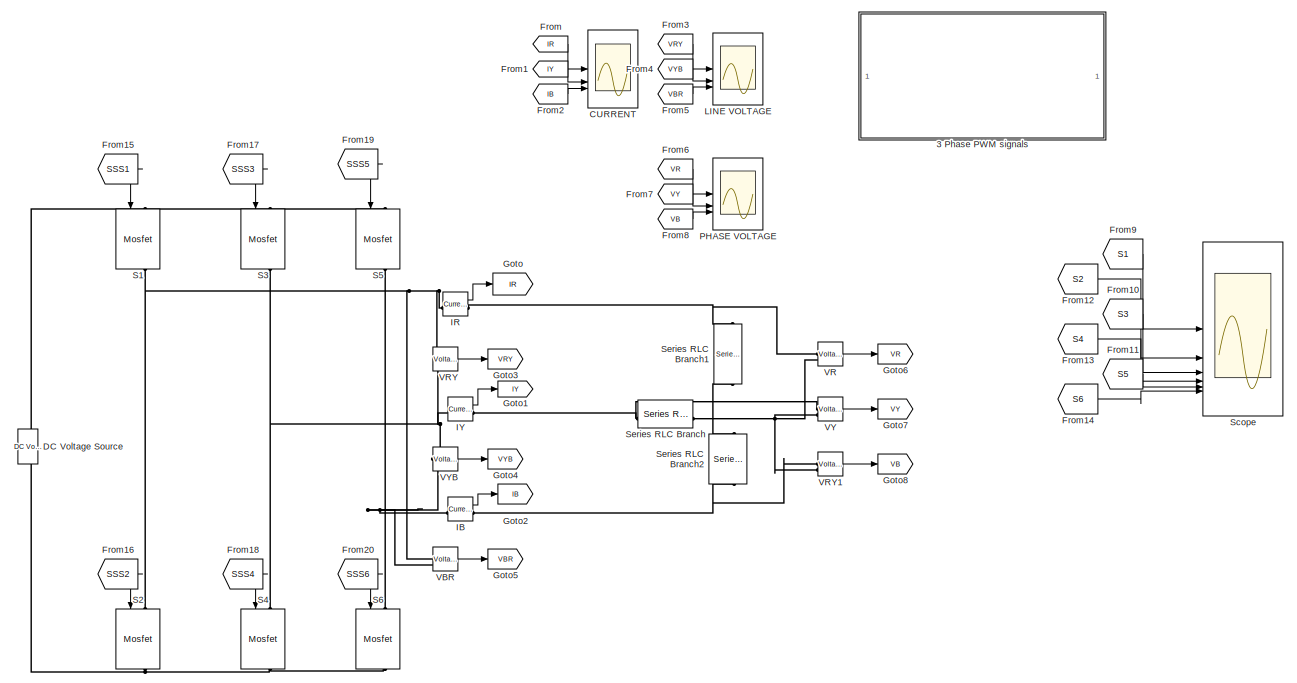
[diagram: root canvas - part 1/2, left side, full height]
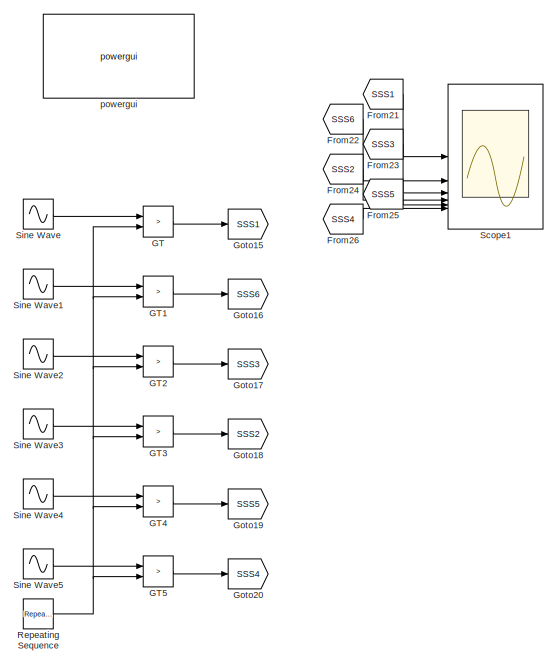
[diagram: root canvas - part 2/2, right side, full height]
MODEL slx_63629c87b95e
KIND model
CONFIG AbsTol = auto
CONFIG EnableMultiTasking = off
CONFIG FixedStep = auto
CONFIG MaxStep = auto
CONFIG MinStep = auto
CONFIG RelTol = 1e-3
CONFIG SampleTimeConstraint = Unconstrained
CONFIG SolverName = VariableStepAuto
CONFIG StartTime = 0.0
CONFIG StopTime = 1
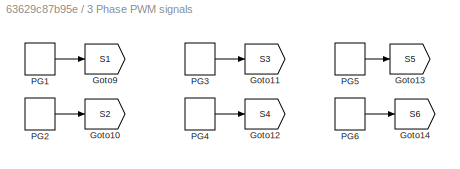
BLOCK [SubSystem] 3 Phase PWM signals
BLOCK [Goto] 3 Phase PWM signals/Goto10
  GotoTag = S2
BLOCK [Goto] 3 Phase PWM signals/Goto11
  GotoTag = S3
BLOCK [Goto] 3 Phase PWM signals/Goto12
  GotoTag = S4
BLOCK [Goto] 3 Phase PWM signals/Goto13
  GotoTag = S5
BLOCK [Goto] 3 Phase PWM signals/Goto14
  GotoTag = S6
BLOCK [Goto] 3 Phase PWM signals/Goto9
  GotoTag = S1
BLOCK [DiscretePulseGenerator] 3 Phase PWM signals/PG1
  Period = 0.02
  PulseType = Time based
  PulseWidth = 50
BLOCK [DiscretePulseGenerator] 3 Phase PWM signals/PG2
  Period = 0.02
  PhaseDelay = 180*0.02/360
  PulseType = Time based
  PulseWidth = 50
BLOCK [DiscretePulseGenerator] 3 Phase PWM signals/PG3
  Period = 0.02
  PhaseDelay = 120*0.02/360
  PulseType = Time based
  PulseWidth = 50
BLOCK [DiscretePulseGenerator] 3 Phase PWM signals/PG4
  Period = 0.02
  PhaseDelay = 300*0.02/360
  PulseType = Time based
  PulseWidth = 50
BLOCK [DiscretePulseGenerator] 3 Phase PWM signals/PG5
  Period = 0.02
  PhaseDelay = 240*0.02/360
  PulseType = Time based
  PulseWidth = 50
BLOCK [DiscretePulseGenerator] 3 Phase PWM signals/PG6
  Period = 0.02
  PhaseDelay = 60*0.02/360
  PulseType = Time based
  PulseWidth = 50
BLOCK [Scope] CURRENT
  Floating = off
  NumInputPorts = 3
  ScopeSpecificationString = Simulink.scopes.TimeScopeBlockCfg('CurrentConfiguration', extmgr.ConfigurationSet(extmgr.Configuration('Core','General UI',true),extmgr.Configuration('Core','Source UI',true),extmgr.Configuration('Sources','WiredSimulink',true),extmgr.Configuration('Visuals','Time Domain',true,'SerializedDisplays',{struct('MinYLimReal','-54.92414','MaxYLimReal','39.77265','YLabelReal','','MinYLimMag','0.00000','Ma...<+2967ch>
BLOCK [Reference] DC Voltage Source  REF=spsDCVoltageSourceLib/DC Voltage Source
  LibrarySourceBlock = sps_lib/Sources/DC Voltage Source
  SourceBlock = spsDCVoltageSourceLib/DC Voltage Source
  SourceType = DC Voltage Source
BLOCK [From] From
  GotoTag = IR
BLOCK [From] From1
  GotoTag = IY
BLOCK [From] From10
  GotoTag = S3
BLOCK [From] From11
  GotoTag = S5
BLOCK [From] From12
  GotoTag = S2
BLOCK [From] From13
  GotoTag = S4
BLOCK [From] From14
  GotoTag = S6
BLOCK [From] From15
  GotoTag = SSS1
BLOCK [From] From16
  GotoTag = SSS2
BLOCK [From] From17
  GotoTag = SSS3
BLOCK [From] From18
  GotoTag = SSS4
BLOCK [From] From19
  GotoTag = SSS5
BLOCK [From] From2
  GotoTag = IB
BLOCK [From] From20
  GotoTag = SSS6
BLOCK [From] From21
  GotoTag = SSS1
BLOCK [From] From22
  GotoTag = SSS6
BLOCK [From] From23
  GotoTag = SSS3
BLOCK [From] From24
  GotoTag = SSS2
BLOCK [From] From25
  GotoTag = SSS5
BLOCK [From] From26
  GotoTag = SSS4
BLOCK [From] From3
  GotoTag = VRY
BLOCK [From] From4
  GotoTag = VYB
BLOCK [From] From5
  GotoTag = VBR
BLOCK [From] From6
  GotoTag = VR
BLOCK [From] From7
  GotoTag = VY
BLOCK [From] From8
  GotoTag = VB
BLOCK [From] From9
  GotoTag = S1
BLOCK [RelationalOperator] GT
  InputSameDT = off
  Operator = >
  OutDataTypeStr = boolean
  RndMeth = Simplest
BLOCK [RelationalOperator] GT1
  InputSameDT = off
  Operator = >
  OutDataTypeStr = boolean
  RndMeth = Simplest
BLOCK [RelationalOperator] GT2
  InputSameDT = off
  Operator = >
  OutDataTypeStr = boolean
  RndMeth = Simplest
BLOCK [RelationalOperator] GT3
  InputSameDT = off
  Operator = >
  OutDataTypeStr = boolean
  RndMeth = Simplest
BLOCK [RelationalOperator] GT4
  InputSameDT = off
  Operator = >
  OutDataTypeStr = boolean
  RndMeth = Simplest
BLOCK [RelationalOperator] GT5
  InputSameDT = off
  Operator = >
  OutDataTypeStr = boolean
  RndMeth = Simplest
BLOCK [Goto] Goto
  GotoTag = IR
BLOCK [Goto] Goto1
  GotoTag = IY
BLOCK [Goto] Goto15
  GotoTag = SSS1
BLOCK [Goto] Goto16
  GotoTag = SSS6
BLOCK [Goto] Goto17
  GotoTag = SSS3
BLOCK [Goto] Goto18
  GotoTag = SSS2
BLOCK [Goto] Goto19
  GotoTag = SSS5
BLOCK [Goto] Goto2
  GotoTag = IB
BLOCK [Goto] Goto20
  GotoTag = SSS4
BLOCK [Goto] Goto3
  GotoTag = VRY
BLOCK [Goto] Goto4
  GotoTag = VYB
BLOCK [Goto] Goto5
  GotoTag = VBR
BLOCK [Goto] Goto6
  GotoTag = VR
BLOCK [Goto] Goto7
  GotoTag = VY
BLOCK [Goto] Goto8
  GotoTag = VB
BLOCK [Reference] IB  REF=spsCurrentMeasurementLib/Current Measurement
  LibrarySourceBlock = sps_lib/Sensors and Measurements/Current Measurement
  SourceBlock = spsCurrentMeasurementLib/Current Measurement
  SourceType = Current Measurement
  UserDataPersistent = on
BLOCK [Reference] IR  REF=spsCurrentMeasurementLib/Current Measurement
  LibrarySourceBlock = sps_lib/Sensors and Measurements/Current Measurement
  SourceBlock = spsCurrentMeasurementLib/Current Measurement
  SourceType = Current Measurement
  UserDataPersistent = on
BLOCK [Reference] IY  REF=spsCurrentMeasurementLib/Current Measurement
  LibrarySourceBlock = sps_lib/Sensors and Measurements/Current Measurement
  SourceBlock = spsCurrentMeasurementLib/Current Measurement
  SourceType = Current Measurement
  UserDataPersistent = on
BLOCK [Scope] LINE VOLTAGE
  Floating = off
  NumInputPorts = 3
  ScopeSpecificationString = Simulink.scopes.TimeScopeBlockCfg('CurrentConfiguration', extmgr.ConfigurationSet(extmgr.Configuration('Core','General UI',true),extmgr.Configuration('Core','Source UI',true),extmgr.Configuration('Sources','WiredSimulink',true,'DataLoggingVariableName','ScopeData1'),extmgr.Configuration('Visuals','Time Domain',true,'SerializedDisplays',{struct('MinYLimReal','-89.4541','MaxYLimReal','113.63616','YL...<+3038ch>
BLOCK [Scope] PHASE VOLTAGE
  Floating = off
  NumInputPorts = 3
  ScopeSpecificationString = Simulink.scopes.TimeScopeBlockCfg('CurrentConfiguration', extmgr.ConfigurationSet(extmgr.Configuration('Core','General UI',true),extmgr.Configuration('Core','Source UI',true),extmgr.Configuration('Sources','WiredSimulink',true,'DataLoggingVariableName','ScopeData2'),extmgr.Configuration('Visuals','Time Domain',true,'SerializedDisplays',{struct('MinYLimReal','-6.31792','MaxYLimReal','41.09954','YLa...<+3027ch>
BLOCK [Reference] Repeating Sequence  REF=simulink/Sources/Repeating
Sequence
  SourceBlock = simulink/Sources/Repeating\nSequence
  SourceType = Repeating table
BLOCK [Reference] S1  REF=spsMosfetLib/Mosfet
  LibrarySourceBlock = sps_lib/Power Electronics/Mosfet
  NameLocation = left
  SourceBlock = spsMosfetLib/Mosfet
  SourceType = Mosfet
BLOCK [Reference] S2  REF=spsMosfetLib/Mosfet
  LibrarySourceBlock = sps_lib/Power Electronics/Mosfet
  NameLocation = left
  SourceBlock = spsMosfetLib/Mosfet
  SourceType = Mosfet
BLOCK [Reference] S3  REF=spsMosfetLib/Mosfet
  LibrarySourceBlock = sps_lib/Power Electronics/Mosfet
  NameLocation = left
  SourceBlock = spsMosfetLib/Mosfet
  SourceType = Mosfet
BLOCK [Reference] S4  REF=spsMosfetLib/Mosfet
  LibrarySourceBlock = sps_lib/Power Electronics/Mosfet
  NameLocation = left
  SourceBlock = spsMosfetLib/Mosfet
  SourceType = Mosfet
BLOCK [Reference] S5  REF=spsMosfetLib/Mosfet
  LibrarySourceBlock = sps_lib/Power Electronics/Mosfet
  NameLocation = left
  SourceBlock = spsMosfetLib/Mosfet
  SourceType = Mosfet
BLOCK [Reference] S6  REF=spsMosfetLib/Mosfet
  LibrarySourceBlock = sps_lib/Power Electronics/Mosfet
  NameLocation = left
  SourceBlock = spsMosfetLib/Mosfet
  SourceType = Mosfet
BLOCK [Scope] Scope
  Floating = off
  NumInputPorts = 6
  ScopeSpecificationString = Simulink.scopes.TimeScopeBlockCfg('CurrentConfiguration', extmgr.ConfigurationSet(extmgr.Configuration('Core','General UI',true),extmgr.Configuration('Core','Source UI',true),extmgr.Configuration('Sources','WiredSimulink',true,'DataLoggingVariableName','ScopeData3'),extmgr.Configuration('Visuals','Time Domain',true,'SerializedDisplays',{struct('MinYLimReal','0.3981','MaxYLimReal','1.04402','YLabel...<+5609ch>
BLOCK [Scope] Scope1
  Floating = off
  NumInputPorts = 6
  ScopeSpecificationString = Simulink.scopes.TimeScopeBlockCfg('CurrentConfiguration', extmgr.ConfigurationSet(extmgr.Configuration('Core','General UI',true),extmgr.Configuration('Core','Source UI',true),extmgr.Configuration('Sources','WiredSimulink',true,'DataLoggingVariableName','ScopeData1'),extmgr.Configuration('Visuals','Time Domain',true,'SerializedDisplays',{struct('MinYLimReal','0.26635','MaxYLimReal','0.83212','YLabe...<+5364ch>
BLOCK [Reference] Series RLC Branch  REF=spsSeriesRLCBranchLib/Series RLC Branch
  LibrarySourceBlock = sps_lib/Passives/Series RLC Branch
  SourceBlock = spsSeriesRLCBranchLib/Series RLC Branch
  SourceType = Series RLC Branch
BLOCK [Reference] Series RLC Branch1  REF=spsSeriesRLCBranchLib/Series RLC Branch
  LibrarySourceBlock = sps_lib/Passives/Series RLC Branch
  NameLocation = left
  SourceBlock = spsSeriesRLCBranchLib/Series RLC Branch
  SourceType = Series RLC Branch
BLOCK [Reference] Series RLC Branch2  REF=spsSeriesRLCBranchLib/Series RLC Branch
  LibrarySourceBlock = sps_lib/Passives/Series RLC Branch
  NameLocation = left
  SourceBlock = spsSeriesRLCBranchLib/Series RLC Branch
  SourceType = Series RLC Branch
BLOCK [Sin] Sine Wave
  Frequency = 2*pi*50
  SampleTime = 0
BLOCK [Sin] Sine Wave1
  Frequency = 2*pi*50
  Phase = 60*(pi/180)
  SampleTime = 0
BLOCK [Sin] Sine Wave2
  Frequency = 2*pi*50
  Phase = 120*(pi/360)
  SampleTime = 0
BLOCK [Sin] Sine Wave3
  Frequency = 2*pi*50
  Phase = 180*(pi/360)
  SampleTime = 0
BLOCK [Sin] Sine Wave4
  Frequency = 2*pi*50
  Phase = 240*(pi/360)
  SampleTime = 0
BLOCK [Sin] Sine Wave5
  Frequency = 2*pi*50
  Phase = 300*(pi/360)
  SampleTime = 0
BLOCK [Reference] VBR  REF=spsVoltageMeasurementLib/Voltage Measurement
  LibrarySourceBlock = sps_lib/Sensors and Measurements/Voltage Measurement
  SourceBlock = spsVoltageMeasurementLib/Voltage Measurement
  SourceType = Voltage Measurement
  UserDataPersistent = on
BLOCK [Reference] VR  REF=spsVoltageMeasurementLib/Voltage Measurement
  LibrarySourceBlock = sps_lib/Sensors and Measurements/Voltage Measurement
  SourceBlock = spsVoltageMeasurementLib/Voltage Measurement
  SourceType = Voltage Measurement
  UserDataPersistent = on
BLOCK [Reference] VRY  REF=spsVoltageMeasurementLib/Voltage Measurement
  LibrarySourceBlock = sps_lib/Sensors and Measurements/Voltage Measurement
  SourceBlock = spsVoltageMeasurementLib/Voltage Measurement
  SourceType = Voltage Measurement
  UserDataPersistent = on
BLOCK [Reference] VRY1  REF=spsVoltageMeasurementLib/Voltage Measurement
  LibrarySourceBlock = sps_lib/Sensors and Measurements/Voltage Measurement
  SourceBlock = spsVoltageMeasurementLib/Voltage Measurement
  SourceType = Voltage Measurement
  UserDataPersistent = on
BLOCK [Reference] VY  REF=spsVoltageMeasurementLib/Voltage Measurement
  LibrarySourceBlock = sps_lib/Sensors and Measurements/Voltage Measurement
  SourceBlock = spsVoltageMeasurementLib/Voltage Measurement
  SourceType = Voltage Measurement
  UserDataPersistent = on
BLOCK [Reference] VYB  REF=spsVoltageMeasurementLib/Voltage Measurement
  LibrarySourceBlock = sps_lib/Sensors and Measurements/Voltage Measurement
  SourceBlock = spsVoltageMeasurementLib/Voltage Measurement
  SourceType = Voltage Measurement
  UserDataPersistent = on
BLOCK [Reference] powergui  REF=sps_lib/powergui
  LibrarySourceBlock = sps_lib/powergui
  Priority = 1
  SourceBlock = sps_lib/powergui
  SourceType = PSB option menu block
LINE 3 Phase PWM signals/PG1:1 -> 3 Phase PWM signals/Goto9:1
LINE 3 Phase PWM signals/PG2:1 -> 3 Phase PWM signals/Goto10:1
LINE 3 Phase PWM signals/PG3:1 -> 3 Phase PWM signals/Goto11:1
LINE 3 Phase PWM signals/PG4:1 -> 3 Phase PWM signals/Goto12:1
LINE 3 Phase PWM signals/PG5:1 -> 3 Phase PWM signals/Goto13:1
LINE 3 Phase PWM signals/PG6:1 -> 3 Phase PWM signals/Goto14:1
LINE From10:1 -> Scope:3
LINE From11:1 -> Scope:5
LINE From12:1 -> Scope:2
LINE From13:1 -> Scope:4
LINE From14:1 -> Scope:6
LINE From15:1 -> S1:1
LINE From16:1 -> S2:1
LINE From17:1 -> S3:1
LINE From18:1 -> S4:1
LINE From19:1 -> S5:1
LINE From1:1 -> CURRENT:2
LINE From20:1 -> S6:1
LINE From21:1 -> Scope1:1
LINE From22:1 -> Scope1:2
LINE From23:1 -> Scope1:3
LINE From24:1 -> Scope1:4
LINE From25:1 -> Scope1:5
LINE From26:1 -> Scope1:6
LINE From2:1 -> CURRENT:3
LINE From3:1 -> LINE VOLTAGE:1
LINE From4:1 -> LINE VOLTAGE:2
LINE From5:1 -> LINE VOLTAGE:3
LINE From6:1 -> PHASE VOLTAGE:1
LINE From7:1 -> PHASE VOLTAGE:2
LINE From8:1 -> PHASE VOLTAGE:3
LINE From9:1 -> Scope:1
LINE From:1 -> CURRENT:1
LINE GT1:1 -> Goto16:1
LINE GT2:1 -> Goto17:1
LINE GT3:1 -> Goto18:1
LINE GT4:1 -> Goto19:1
LINE GT5:1 -> Goto20:1
LINE GT:1 -> Goto15:1
LINE IB:1 -> Goto2:1
LINE IR:1 -> Goto:1
LINE IY:1 -> Goto1:1
NET Repeating Sequence:1 -> GT1:2, GT2:2, GT3:2, GT4:2, GT5:2, GT:2
LINE Sine Wave1:1 -> GT1:1
LINE Sine Wave2:1 -> GT2:1
LINE Sine Wave3:1 -> GT3:1
LINE Sine Wave4:1 -> GT4:1
LINE Sine Wave5:1 -> GT5:1
LINE Sine Wave:1 -> GT:1
LINE VBR:1 -> Goto5:1
LINE VR:1 -> Goto6:1
LINE VRY1:1 -> Goto8:1
LINE VRY:1 -> Goto3:1
LINE VY:1 -> Goto7:1
LINE VYB:1 -> Goto4:1
PNET net1: DC Voltage Source:LConn1 -- S2:RConn1 -- S4:RConn1 -- S6:RConn1
PNET net2: DC Voltage Source:RConn1 -- S1:LConn1 -- S3:LConn1 -- S5:LConn1
PNET net3: IB:LConn1 -- S5:RConn1 -- S6:LConn1 -- VBR:LConn2 -- VYB:LConn2
PNET net4: IB:RConn1 -- Series RLC Branch2:RConn1 -- VRY1:LConn1
PNET net5: IR:LConn1 -- S1:RConn1 -- S2:LConn1 -- VBR:LConn1 -- VRY:LConn1
PNET net6: IR:RConn1 -- Series RLC Branch1:LConn1 -- VR:LConn1
PNET net7: IY:LConn1 -- S3:RConn1 -- S4:LConn1 -- VRY:LConn2 -- VYB:LConn1
PNET net8: IY:RConn1 -- Series RLC Branch:LConn1 -- VY:LConn1
PNET net9: Series RLC Branch1:RConn1 -- Series RLC Branch2:LConn1 -- Series RLC Branch:RConn1 -- VR:LConn2 -- VRY1:LConn2 -- VY:LConn2
note: NET lines group one-source signal fan-out (src -> all destinations, sorted); 1:1 wires keep LINE; PNET lines group multi-terminal physical nets as a canonical sorted terminal list (undirected conserving connections); 2-terminal nets keep the pairwise PLINE form
